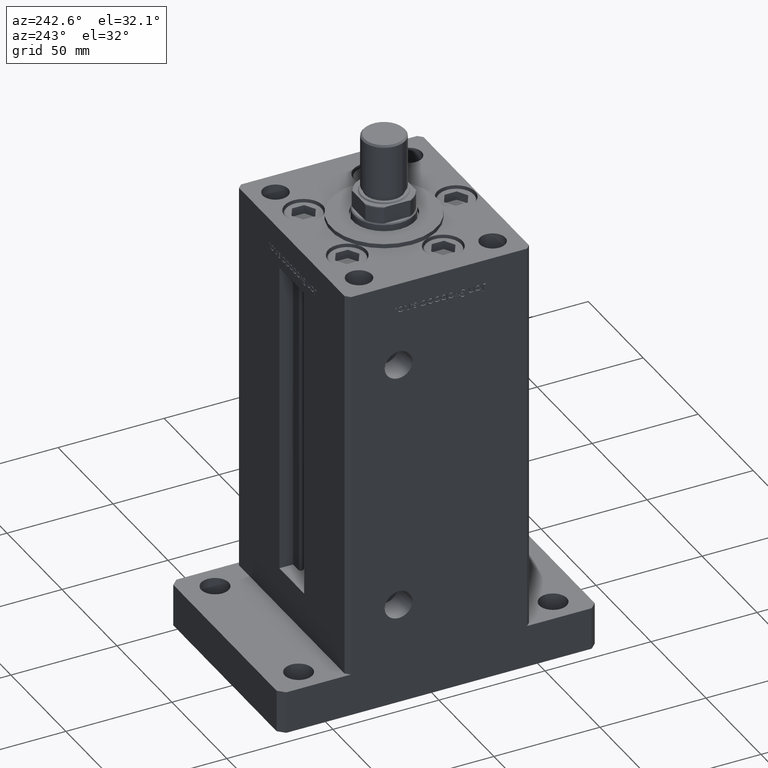
[diagram: clean part render]
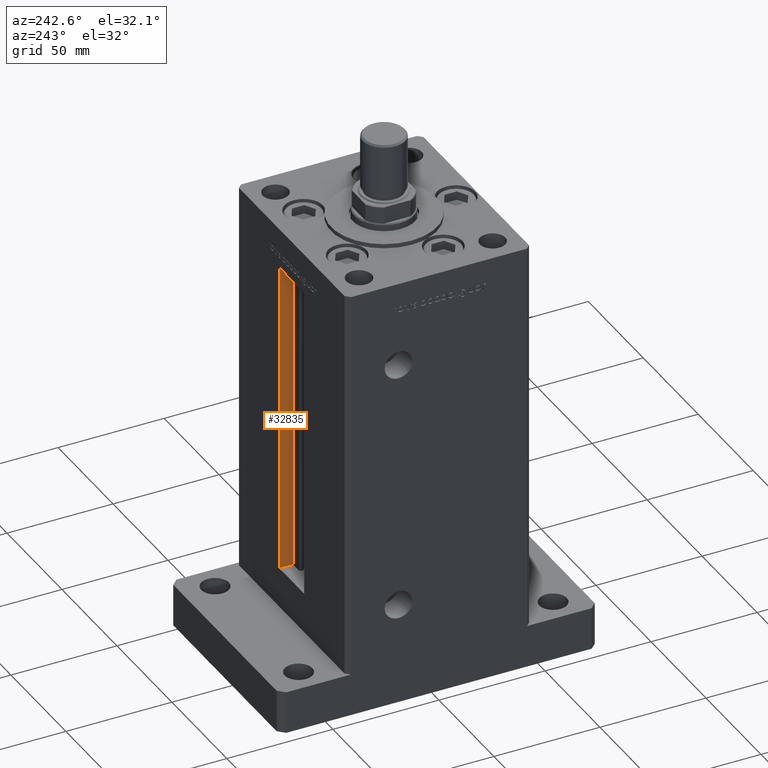
[diagram: same view with one face highlighted and labeled with its STEP entity id]
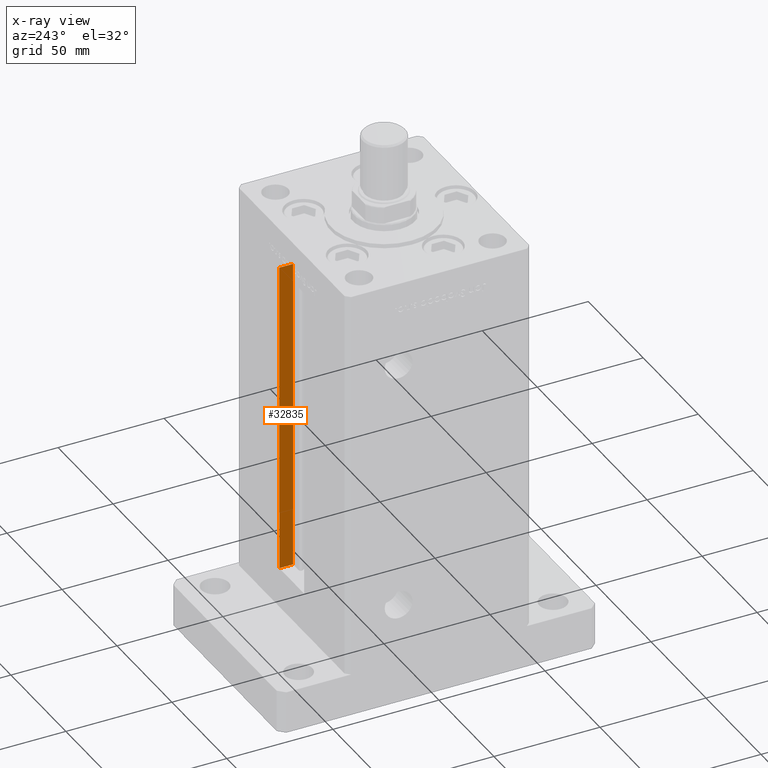
[diagram: x-ray of the same camera — body ghosted, the highlighted face saturated]
A machine part, auxiliary view. The second image highlights one B-rep face of the part: STEP entity #32835.
The next image is the same camera in x-ray: the body ghosted, the highlighted face saturated — about 0% of this face is hidden behind the body in this view.
In plain terms, the highlighted planar face has unit normal (1, 0, 0).
Its self-contained STEP definition (entity closure, byte-faithful):
#446 = EDGE_LOOP ( 'NONE', ( #16241, #53245, #34104, #22062 ) ) ;
#1497 = EDGE_CURVE ( 'NONE', #45655, #28435, #39705, .T. ) ;
#2197 = DIRECTION ( 'NONE',  ( -0.000000000000000000, -0.000000000000000000, 1.000000000000000000 ) ) ;
#3379 = DIRECTION ( 'NONE',  ( 0.000000000000000000, 0.000000000000000000, -1.000000000000000000 ) ) ;
#3453 = CARTESIAN_POINT ( 'NONE',  ( 11.24999999999999822, 36.99999999999999289, 0.000000000000000000 ) ) ;
#5407 = CARTESIAN_POINT ( 'NONE',  ( 11.24999999999999822, 0.000000000000000000, 148.5000000000000000 ) ) ;
#7012 = LINE ( 'NONE', #3453, #36472 ) ;
#9189 = VERTEX_POINT ( 'NONE', #49982 ) ;
#9870 = CARTESIAN_POINT ( 'NONE',  ( 11.24999999999999822, 36.99999999999999289, 148.5000000000000000 ) ) ;
#10691 = CARTESIAN_POINT ( 'NONE',  ( 11.24999999999999822, 43.50000000000000000, 0.000000000000000000 ) ) ;
#11853 = DIRECTION ( 'NONE',  ( 1.000000000000000000, -0.000000000000000000, 0.000000000000000000 ) ) ;
#14245 = CARTESIAN_POINT ( 'NONE',  ( 11.24999999999999822, 36.99999999999999289, 0.000000000000000000 ) ) ;
#16241 = ORIENTED_EDGE ( 'NONE', *, *, #31352, .F. ) ;
#17470 = VECTOR ( 'NONE', #2197, 1000.000000000000000 ) ;
#17554 = AXIS2_PLACEMENT_3D ( 'NONE', #41156, #11853, #3379 ) ;
#19591 = DIRECTION ( 'NONE',  ( 0.000000000000000000, 1.000000000000000000, 0.000000000000000000 ) ) ;
#22062 = ORIENTED_EDGE ( 'NONE', *, *, #48620, .F. ) ;
#24168 = PLANE ( 'NONE',  #17554 ) ;
#26062 = CARTESIAN_POINT ( 'NONE',  ( 11.24999999999999822, 36.99999999999999289, 0.000000000000000000 ) ) ;
#26187 = DIRECTION ( 'NONE',  ( -0.000000000000000000, -0.000000000000000000, 1.000000000000000000 ) ) ;
#28435 = VERTEX_POINT ( 'NONE', #9870 ) ;
#30383 = FACE_OUTER_BOUND ( 'NONE', #446, .T. ) ;
#30583 = LINE ( 'NONE', #5407, #34943 ) ;
#31352 = EDGE_CURVE ( 'NONE', #31759, #9189, #34409, .T. ) ;
#31759 = VERTEX_POINT ( 'NONE', #10691 ) ;
#32835 = ADVANCED_FACE ( 'NONE', ( #30383 ), #24168, .F. ) ;
#34104 = ORIENTED_EDGE ( 'NONE', *, *, #1497, .T. ) ;
#34409 = LINE ( 'NONE', #44442, #53281 ) ;
#34943 = VECTOR ( 'NONE', #50886, 1000.000000000000000 ) ;
#36472 = VECTOR ( 'NONE', #19591, 1000.000000000000000 ) ;
#37462 = EDGE_CURVE ( 'NONE', #45655, #31759, #7012, .T. ) ;
#39705 = LINE ( 'NONE', #14245, #17470 ) ;
#41156 = CARTESIAN_POINT ( 'NONE',  ( 11.24999999999999822, 36.99999999999999289, 0.000000000000000000 ) ) ;
#44442 = CARTESIAN_POINT ( 'NONE',  ( 11.24999999999999822, 43.50000000000000000, 0.000000000000000000 ) ) ;
#45655 = VERTEX_POINT ( 'NONE', #26062 ) ;
#48620 = EDGE_CURVE ( 'NONE', #9189, #28435, #30583, .T. ) ;
#49982 = CARTESIAN_POINT ( 'NONE',  ( 11.24999999999999112, 43.50000000000000000, 148.5000000000000000 ) ) ;
#50886 = DIRECTION ( 'NONE',  ( -0.000000000000000000, -1.000000000000000000, 0.000000000000000000 ) ) ;
#53245 = ORIENTED_EDGE ( 'NONE', *, *, #37462, .F. ) ;
#53281 = VECTOR ( 'NONE', #26187, 1000.000000000000000 ) ;